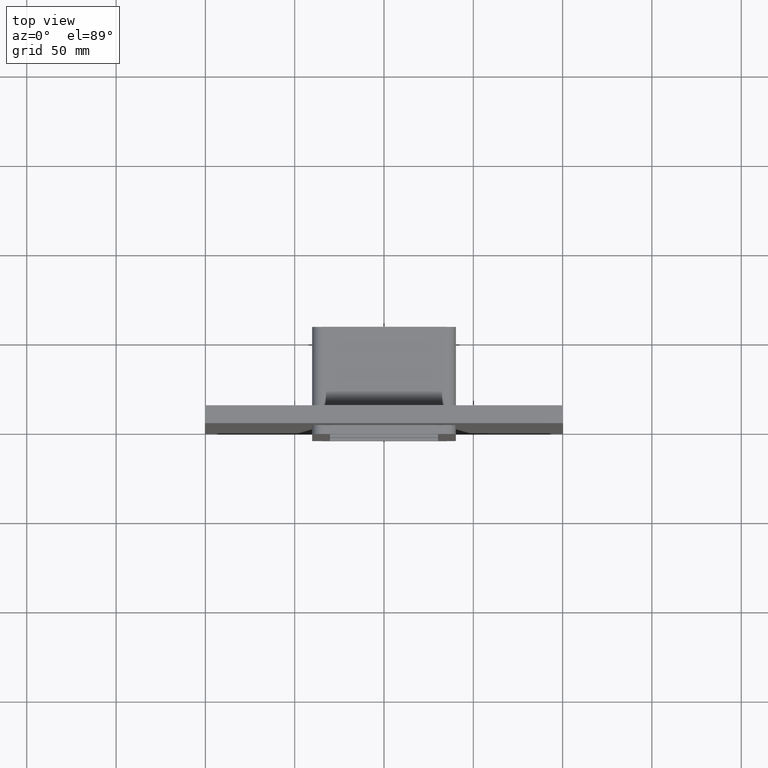
[diagram: clean part render]
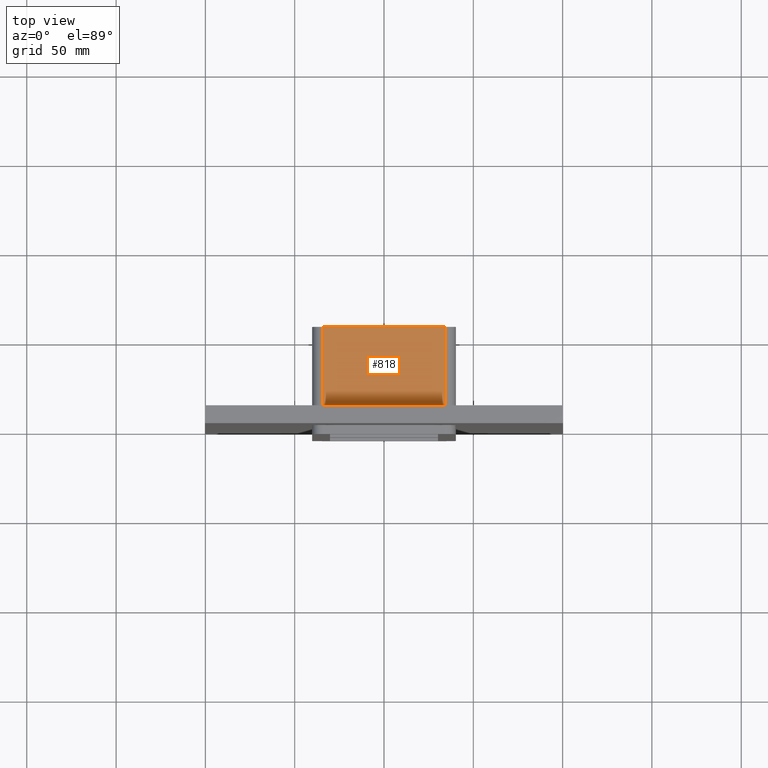
[diagram: same view with one face highlighted and labeled with its STEP entity id]
A machine part, top view. The second image highlights one B-rep face of the part: STEP entity #818.
In plain terms, the highlighted planar face has unit normal (0, 0, 1).
Its self-contained STEP definition (entity closure, byte-faithful):
#280=CARTESIAN_POINT('',(34.250000000000028,10.0,116.00000000000001));
#281=VERTEX_POINT('',#280);
#291=CARTESIAN_POINT('',(-34.250000000000028,10.0,116.00000000000001));
#292=VERTEX_POINT('',#291);
#293=CARTESIAN_POINT('',(-34.250000000000028,10.0,116.00000000000001));
#294=DIRECTION('',(1.0,0.0,0.0));
#295=VECTOR('',#294,68.500000000000057);
#296=LINE('',#293,#295);
#297=EDGE_CURVE('',#292,#281,#296,.T.);
#727=CARTESIAN_POINT('',(-34.250000000000028,55.0,116.00000000000001));
#728=VERTEX_POINT('',#727);
#729=CARTESIAN_POINT('',(-34.250000000000028,10.0,116.00000000000001));
#730=DIRECTION('',(0.0,1.0,0.0));
#731=VECTOR('',#730,45.0);
#732=LINE('',#729,#731);
#733=EDGE_CURVE('',#292,#728,#732,.T.);
#795=CARTESIAN_POINT('',(-34.250000000000028,0.0,116.00000000000001));
#796=DIRECTION('',(0.0,0.0,1.0));
#797=DIRECTION('',(1.0,0.0,0.0));
#798=AXIS2_PLACEMENT_3D('',#795,#796,#797);
#799=PLANE('',#798);
#800=ORIENTED_EDGE('',*,*,#297,.T.);
#801=CARTESIAN_POINT('',(34.250000000000028,55.0,116.00000000000001));
#802=VERTEX_POINT('',#801);
#803=CARTESIAN_POINT('',(34.250000000000028,10.0,116.00000000000001));
#804=DIRECTION('',(0.0,1.0,0.0));
#805=VECTOR('',#804,45.0);
#806=LINE('',#803,#805);
#807=EDGE_CURVE('',#281,#802,#806,.T.);
#808=ORIENTED_EDGE('',*,*,#807,.T.);
#809=CARTESIAN_POINT('',(-34.250000000000028,55.0,116.00000000000001));
#810=DIRECTION('',(1.0,0.0,0.0));
#811=VECTOR('',#810,68.500000000000057);
#812=LINE('',#809,#811);
#813=EDGE_CURVE('',#728,#802,#812,.T.);
#814=ORIENTED_EDGE('',*,*,#813,.F.);
#815=ORIENTED_EDGE('',*,*,#733,.F.);
#816=EDGE_LOOP('',(#800,#808,#814,#815));
#817=FACE_OUTER_BOUND('',#816,.T.);
#818=ADVANCED_FACE('',(#817),#799,.T.);